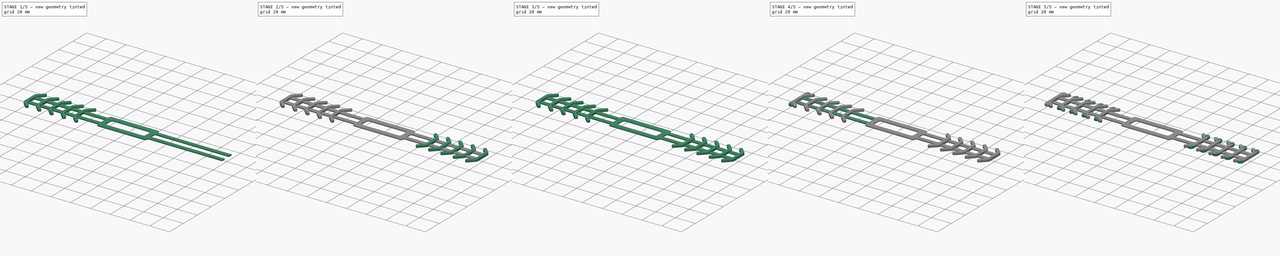
[diagram: build sequence overview — one tinted view per stage of 5, left to right]
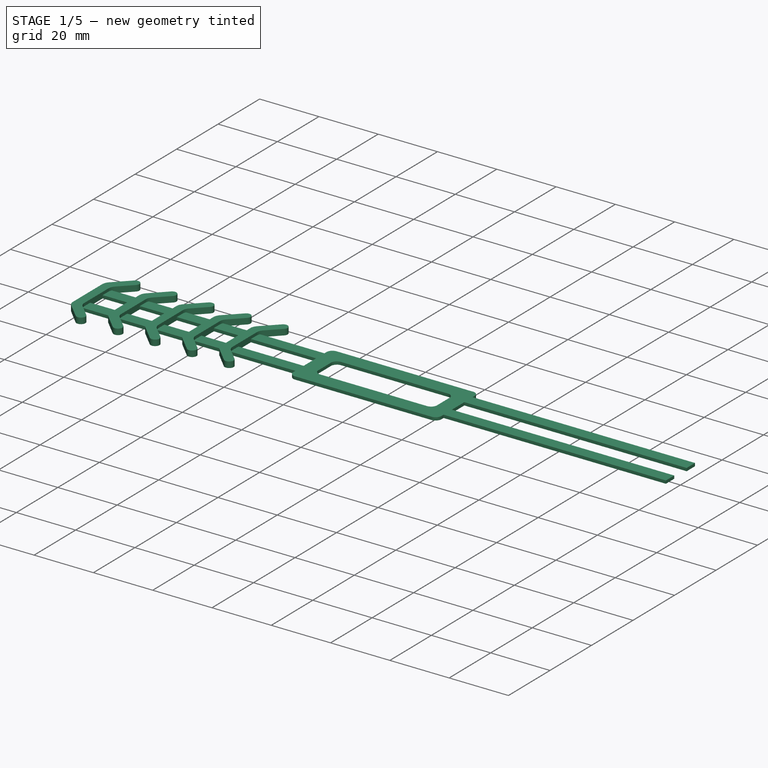
[diagram: stage 1 of 5 — iso view after this stage's code; geometry added in this stage tinted green]
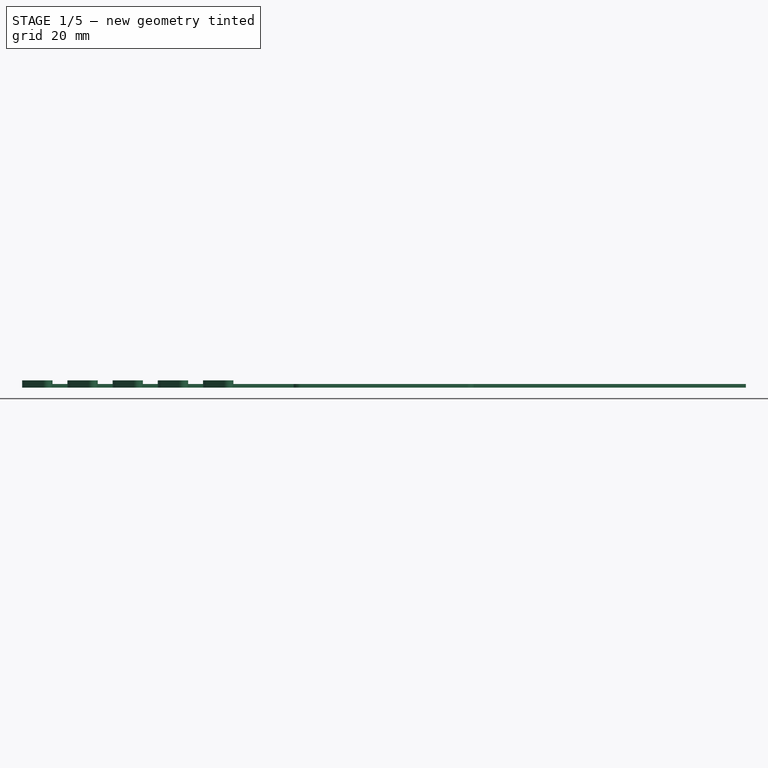
[diagram: stage 1 of 5 — front view after this stage's code; geometry added in this stage tinted green]
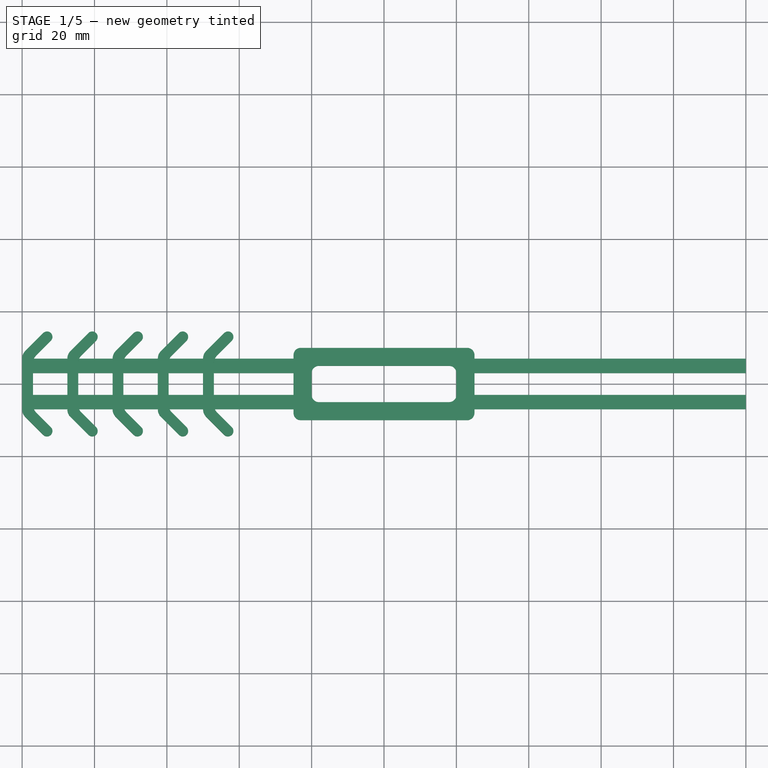
[diagram: stage 1 of 5 — top view after this stage's code; geometry added in this stage tinted green]
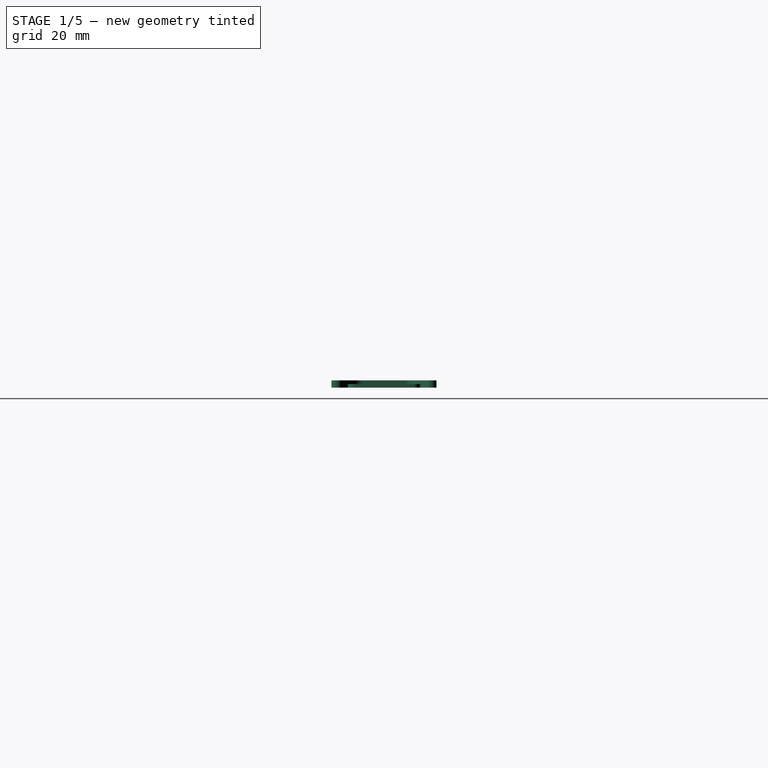
[diagram: stage 1 of 5 — right view after this stage's code; geometry added in this stage tinted green]
FCSTD DOCUMENT  (FreeCAD 0.19R24267 (Git))
Label: EarSaver
License: All rights reserved
LicenseURL: http://en.wikipedia.org/wiki/All_rights_reserved
objects: Sketcher::SketchObject×9, PartDesign::Pad×9, PartDesign::LinearPattern×6, PartDesign::Body×3
note: 36 computed .brp shape members not serialized (recipe doc carries the construction recipe); baked Part::Feature solids carry a one-line shape summary decoded from their .brp

FEATURE [PartDesign::Body] Body001
  Group = -> [Sketch003,Pad003,Sketch004,Pad004,LinearPattern002,Sketch005,Pad005,LinearPattern003]
  Origin = -> Origin002
  Tip = -> LinearPattern003
FEATURE [Sketcher::SketchObject] Sketch006
  FullyConstrained = true
  MapMode = 5
  Support = -> [XY_Plane003]
  sketch-geometry (36):
    g0: LineSegment StartX=-18 StartY=5 StartZ=0 EndX=18 EndY=5 EndZ=0
    g1: LineSegment StartX=20 StartY=3 StartZ=0 EndX=20 EndY=-3 EndZ=0
    g2: LineSegment StartX=18 StartY=-5 StartZ=0 EndX=-18 EndY=-5 EndZ=0
    g3: LineSegment StartX=-20 StartY=-3 StartZ=0 EndX=-20 EndY=3 EndZ=0
    g4: LineSegment StartX=-23 StartY=10 StartZ=0 EndX=23 EndY=10 EndZ=0
    g5: LineSegment StartX=25 StartY=8 StartZ=0 EndX=25 EndY=7 EndZ=0
    g6: LineSegment StartX=23 StartY=-10 StartZ=0 EndX=-23 EndY=-10 EndZ=0
    g7: LineSegment StartX=-25 StartY=-8 StartZ=0 EndX=-25 EndY=-7 EndZ=0
    g8: ArcOfCircle CenterX=-23 CenterY=8 CenterZ=0 NormalX=0 NormalY=0 NormalZ=1 AngleXU=0 Radius=2 StartAngle=1.5708 EndAngle=3.14159
    g9: ArcOfCircle CenterX=-18 CenterY=3 CenterZ=0 NormalX=0 NormalY=0 NormalZ=1 AngleXU=0 Radius=2 StartAngle=1.5708 EndAngle=3.14159
    g10: ArcOfCircle CenterX=18 CenterY=3 CenterZ=0 NormalX=0 NormalY=0 NormalZ=1 AngleXU=0 Radius=2 StartAngle=0 EndAngle=1.5708
    g11: ArcOfCircle CenterX=23 CenterY=8 CenterZ=0 NormalX=0 NormalY=0 NormalZ=1 AngleXU=0 Radius=2 StartAngle=1e-16 EndAngle=1.5708
    g12: ArcOfCircle CenterX=23 CenterY=-8 CenterZ=0 NormalX=0 NormalY=0 NormalZ=1 AngleXU=0 Radius=2 StartAngle=4.71239 EndAngle=6.28319
    g13: ArcOfCircle CenterX=18 CenterY=-3 CenterZ=0 NormalX=0 NormalY=0 NormalZ=1 AngleXU=0 Radius=2 StartAngle=4.71239 EndAngle=6.28319
    g14: ArcOfCircle CenterX=-18 CenterY=-3 CenterZ=0 NormalX=0 NormalY=0 NormalZ=1 AngleXU=0 Radius=2 StartAngle=3.14159 EndAngle=4.71239
    g15: ArcOfCircle CenterX=-23 CenterY=-8 CenterZ=0 NormalX=0 NormalY=0 NormalZ=1 AngleXU=0 Radius=2 StartAngle=3.14159 EndAngle=4.71239
    g16: LineSegment StartX=-20 StartY=3 StartZ=0 EndX=-25 EndY=3 EndZ=0
    g17: LineSegment StartX=18 StartY=5 StartZ=0 EndX=18 EndY=10 EndZ=0
    g18: LineSegment StartX=20 StartY=-3 StartZ=0 EndX=25 EndY=-3 EndZ=0
    g19: LineSegment StartX=-18 StartY=-5 StartZ=0 EndX=-18 EndY=-10 EndZ=0
    g20: LineSegment StartX=-25 StartY=7 StartZ=0 EndX=-100 EndY=7 EndZ=0
    g21: LineSegment StartX=-100 StartY=7 StartZ=0 EndX=-100 EndY=3 EndZ=0
    g22: LineSegment StartX=-100 StartY=3 StartZ=0 EndX=-25 EndY=3 EndZ=0
    g23: LineSegment StartX=-25 StartY=-3 StartZ=0 EndX=-100 EndY=-3 EndZ=0
    g24: LineSegment StartX=-100 StartY=-3 StartZ=0 EndX=-100 EndY=-7 EndZ=0
    g25: LineSegment StartX=-100 StartY=-7 StartZ=0 EndX=-25 EndY=-7 EndZ=0
    g26: LineSegment StartX=25 StartY=7 StartZ=0 EndX=100 EndY=7 EndZ=0
    g27: LineSegment StartX=100 StartY=7 StartZ=0 EndX=100 EndY=3 EndZ=0
    g28: LineSegment StartX=100 StartY=3 StartZ=0 EndX=25 EndY=3 EndZ=0
    g29: LineSegment StartX=25 StartY=-3 StartZ=0 EndX=100 EndY=-3 EndZ=0
    g30: LineSegment StartX=100 StartY=-3 StartZ=0 EndX=100 EndY=-7 EndZ=0
    g31: LineSegment StartX=100 StartY=-7 StartZ=0 EndX=25 EndY=-7 EndZ=0
    g32: LineSegment StartX=-25 StartY=7 StartZ=0 EndX=-25 EndY=8 EndZ=0
    g33: LineSegment StartX=-25 StartY=-3 StartZ=0 EndX=-25 EndY=3 EndZ=0
    g34: LineSegment StartX=25 StartY=3 StartZ=0 EndX=25 EndY=-3 EndZ=0
    g35: LineSegment StartX=25 StartY=-7 StartZ=0 EndX=25 EndY=-8 EndZ=0
  constraints (93):
    c: Horizontal(g0)
    c: Horizontal(g2)
    c: Vertical(g1)
    c: Vertical(g3)
    c: Horizontal(g4)
    c: Horizontal(g6)
    c: Vertical(g5)
    c: Vertical(g7)
    c: Tangent(g4,g8) = 1.5708
    c: Tangent(g0,g9) = 1.5708
    c: Tangent(g3,g9) = 1.5708
    c: Tangent(g0,g10) = 1.5708
    c: Tangent(g1,g10) = 1.5708
    c: Tangent(g4,g11) = 1.5708
    c: Tangent(g5,g11) = 1.5708
    c: Tangent(g6,g12) = 1.5708
    c: Tangent(g1,g13) = 1.5708
    c: Tangent(g2,g13) = 1.5708
    c: Tangent(g2,g14) = 1.5708
    c: Tangent(g3,g14) = 1.5708
    c: Tangent(g6,g15) = 1.5708
    c: Tangent(g7,g15) = 1.5708
    c: Equal(g8,g9)
    c: Equal(g9,g10)
    c: Equal(g10,g11)
    c: Equal(g11,g12)
    c: Equal(g12,g13)
    c: Equal(g13,g14)
    c: Equal(g14,g15)
    c: Radius(g8) = 2
    c: Coincident(g16,g3)
    c: Horizontal(g16)
    c: Coincident(g17,g0)
    c: PointOnObject(g17,g4)
    c: Vertical(g17)
    c: Coincident(g18,g1)
    c: PointOnObject(g18,g5)
    c: Horizontal(g18)
    c: Coincident(g19,g2)
    c: PointOnObject(g19,g6)
    c: Vertical(g19)
    c: Equal(g16,g17)
    c: Equal(g17,g18)
    c: Equal(g18,g19)
    c: DistanceY(g19,g19) = 5
    c: DistanceX(g32,g5) = 50
    c: DistanceY(g6,g4) = 20
    c: Horizontal(g20)
    c: Coincident(g20,g21)
    c: Coincident(g21,g22)
    c: PointOnObject(g22,g7)
    c: Horizontal(g22)
    c: DistanceY(g21,g21) = 4
    c: Symmetric(g20,g21,g0)
    c: Horizontal(g23)
    c: Coincident(g23,g24)
    c: Coincident(g24,g25)
    c: Horizontal(g25)
    c: Equal(g21,g24)
    c: Symmetric(g23,g24,g2)
    c: Equal(g23,g22)
    c: Horizontal(g26)
    c: Coincident(g26,g27)
    c: Coincident(g27,g28)
    c: Horizontal(g28)
    c: PointOnObject(g29,g5)
    c: Horizontal(g29)
    c: Coincident(g29,g30)
    c: Coincident(g30,g31)
    c: PointOnObject(g31,g5)
    c: Horizontal(g31)
    c: Equal(g25,g31)
    c: Equal(g29,g28)
    c: Equal(g24,g30)
    c: Equal(g30,g27)
    c: Symmetric(g26,g27,g0)
    c: Symmetric(g30,g29,g2)
    c: Symmetric(g14,g10,g-1)
    c: Coincident(g33,g16)
    c: Coincident(g32,g20)
    c: Tangent(g7,g32)
    c: Coincident(g7,g25)
    c: Coincident(g33,g23)
    c: Tangent(g7,g33)
    c: Coincident(g5,g26)
    c: Coincident(g34,g28)
    c: Tangent(g5,g34)
    c: PointOnObject(g34,g18)
    c: PointOnObject(g35,g31)
    c: Tangent(g34,g35)
    c: Tangent(g8,g32) = 1.5708
    c: Tangent(g12,g35) = 1.5708
    c: DistanceX(g20,g20) = 75
FEATURE [PartDesign::Pad] Pad006
  AllowMultiFace = false
  Direction = (1,1,1)
  Length = 1
  Length2 = 100
  Profile = -> Sketch006
  Type = 0
FEATURE [Sketcher::SketchObject] Sketch007
  ExternalGeometry = -> [Sketch006]
  FullyConstrained = true
  MapMode = 5
  Support = -> [XY_Plane003]
  expr: Constraints[32] = .Constraints.Width
  sketch-geometry (15):
    g0: LineSegment StartX=-100 StartY=7 StartZ=0 EndX=-100 EndY=-7 EndZ=0
    g1: LineSegment StartX=-94.1716 StartY=-14.0711 StartZ=0 EndX=-92.0502 EndY=-11.9498 EndZ=0
    g2: LineSegment StartX=-92.0502 StartY=-11.9498 StartZ=0 EndX=-96.1213 EndY=-7.87862 EndZ=0
    g3: LineSegment StartX=-97 StartY=-5.75731 StartZ=0 EndX=-97 EndY=5.75736 EndZ=0
    g4: LineSegment StartX=-96.1213 StartY=7.87868 StartZ=0 EndX=-92.0502 EndY=11.9498 EndZ=0
    g5: LineSegment StartX=-92.0502 StartY=11.9498 StartZ=0 EndX=-94.1716 EndY=14.0711 EndZ=0
    g6: LineSegment StartX=-99.1213 StartY=9.12132 StartZ=0 EndX=-94.1716 EndY=14.0711 EndZ=0
    g7: ArcOfCircle CenterX=-97 CenterY=7 CenterZ=0 NormalX=0 NormalY=0 NormalZ=1 AngleXU=0 Radius=3 StartAngle=2.35619 EndAngle=3.14159
    g8: LineSegment StartX=-100 StartY=3 StartZ=0 EndX=-97 EndY=3 EndZ=0
    g9: ArcOfCircle CenterX=-94 CenterY=5.75736 CenterZ=0 NormalX=0 NormalY=0 NormalZ=1 AngleXU=0 Radius=3 StartAngle=2.35619 EndAngle=3.14159
    g10: ArcOfCircle CenterX=-93.1109 CenterY=13.0104 CenterZ=0 NormalX=0 NormalY=0 NormalZ=1 AngleXU=0 Radius=1.5 StartAngle=5.49779 EndAngle=8.63938
    g11: LineSegment StartX=-99.1213 StartY=-9.12132 StartZ=0 EndX=-94.1716 EndY=-14.0711 EndZ=0
    g12: ArcOfCircle CenterX=-97 CenterY=-7 CenterZ=0 NormalX=0 NormalY=0 NormalZ=1 AngleXU=0 Radius=3 StartAngle=3.14159 EndAngle=3.92699
    g13: ArcOfCircle CenterX=-94 CenterY=-5.75731 CenterZ=0 NormalX=0 NormalY=0 NormalZ=1 AngleXU=0 Radius=3 StartAngle=3.14159 EndAngle=3.92698
    g14: ArcOfCircle CenterX=-93.1109 CenterY=-13.0104 CenterZ=0 NormalX=0 NormalY=0 NormalZ=1 AngleXU=0 Radius=1.5 StartAngle=3.92698 EndAngle=7.06858
  constraints (37):
    c: Coincident(g1,g2)
    c: Vertical(g3)
    c: Coincident(g4,g5)
    c: Tangent(g0,g7) = -1.5708
    c: Tangent(g6,g7) = 1.5708
    c: Coincident(g0,g-3)
    c: Angle(g0,g6) = 2.35619
    c: Coincident(g5,g6)
    c: Perpendicular(g5,g6)
    c: Parallel(g4,g6)
    c: Coincident(g8,g-3)
    c: PointOnObject(g8,g3)
    c: Horizontal(g8)
    c: Equal(g8,g5)
    c: Tangent(g3,g9) = 1.5708
    c: Tangent(g4,g9) = 1.5708
    c: Equal(g7,g9)
    c: PointOnObject(g10,g5)
    c: Coincident(g10,g5)
    c: Coincident(g10,g4)
    c: DistanceX(g8,g8) = 3  'Width'
    c: Coincident(g11,g1)
    c: Tangent(g0,g12) = -1.5708
    c: Tangent(g11,g12) = -1.5708
    c: Tangent(g2,g13) = 1.5708
    c: Tangent(g3,g13) = 1.5708
    c: Equal(g13,g12)
    c: Equal(g12,g9)
    c: Coincident(g0,g-4)
    c: PointOnObject(g14,g1)
    c: Equal(g14,g10)
    c: Symmetric(g14,g10,g-1)
    c: Radius(g7) = 3
    c: Tangent(g14,g2) = -1.5708
    c: Coincident(g1,g14)
    c: Tangent(g11,g14)
    c: Distance(g11) = 7  'Length'
FEATURE [PartDesign::Pad] Pad007
  AllowMultiFace = false
  BaseFeature = -> Pad006
  Direction = (1,1,1)
  Length = 2
  Length2 = 100
  Profile = -> Sketch007
  Type = 0
FEATURE [PartDesign::LinearPattern] LinearPattern004
  BaseFeature = -> Pad007
  Direction = -> Sketch007 [H_Axis]
  Length = 50
  Occurrences = 5
  Originals = -> [Pad007]
  Refine = true
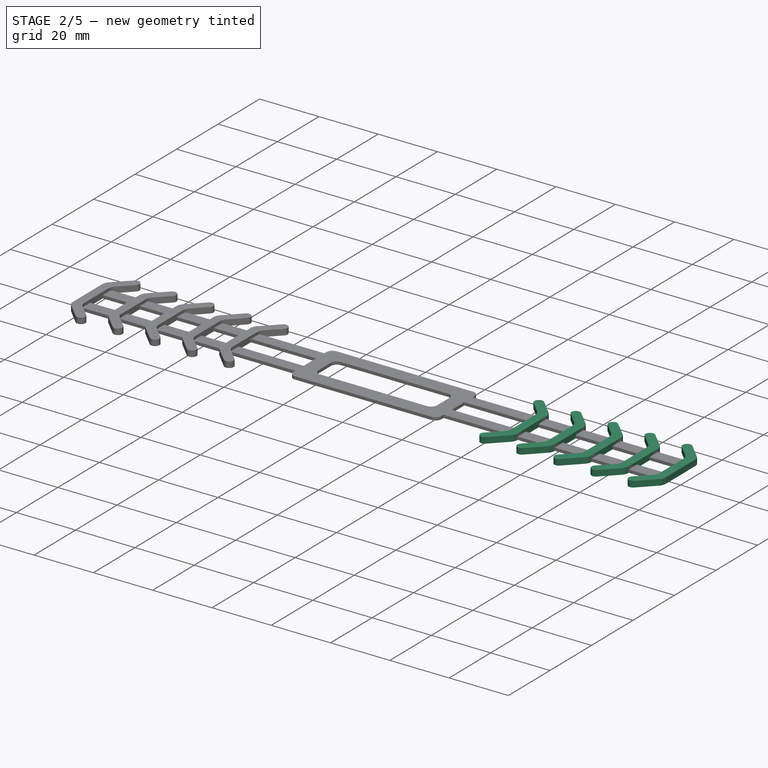
[diagram: stage 2 of 5 — iso view after this stage's code; geometry added in this stage tinted green]
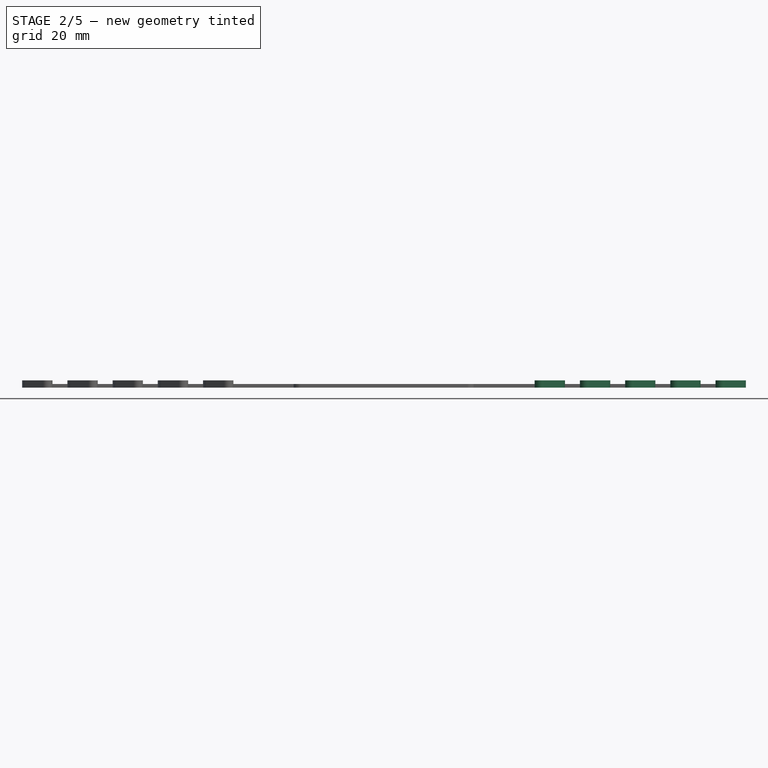
[diagram: stage 2 of 5 — front view after this stage's code; geometry added in this stage tinted green]
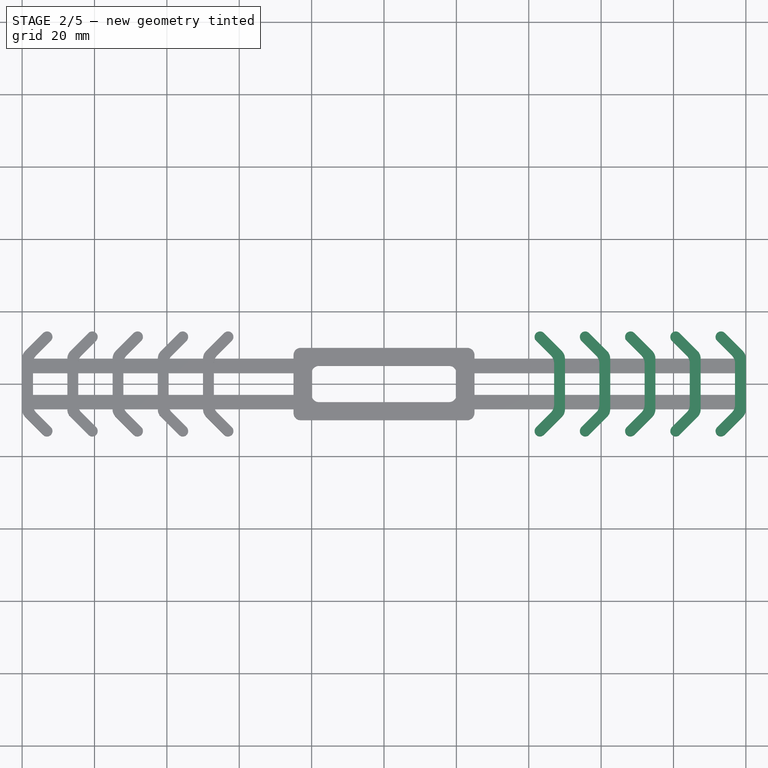
[diagram: stage 2 of 5 — top view after this stage's code; geometry added in this stage tinted green]
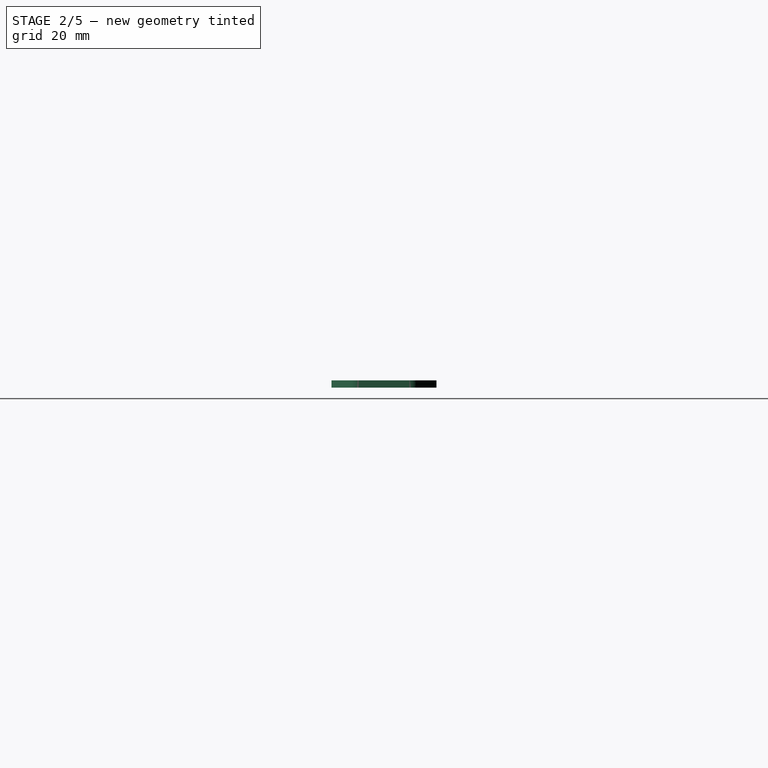
[diagram: stage 2 of 5 — right view after this stage's code; geometry added in this stage tinted green]
FEATURE [PartDesign::Body] Body
  Group = -> [Sketch,Pad,Sketch001,Pad001,LinearPattern,Sketch002,Pad002,LinearPattern001]
  Origin = -> Origin001
  Tip = -> LinearPattern001
FEATURE [Sketcher::SketchObject] Sketch003
  FullyConstrained = true
  MapMode = 5
  Support = -> [XY_Plane002]
  sketch-geometry (36):
    g0: LineSegment StartX=-18 StartY=5 StartZ=0 EndX=18 EndY=5 EndZ=0
    g1: LineSegment StartX=20 StartY=3 StartZ=0 EndX=20 EndY=-3 EndZ=0
    g2: LineSegment StartX=18 StartY=-5 StartZ=0 EndX=-18 EndY=-5 EndZ=0
    g3: LineSegment StartX=-20 StartY=-3 StartZ=0 EndX=-20 EndY=3 EndZ=0
    g4: LineSegment StartX=-23 StartY=10 StartZ=0 EndX=23 EndY=10 EndZ=0
    g5: LineSegment StartX=25 StartY=8 StartZ=0 EndX=25 EndY=7 EndZ=0
    g6: LineSegment StartX=23 StartY=-10 StartZ=0 EndX=-23 EndY=-10 EndZ=0
    g7: LineSegment StartX=-25 StartY=-8 StartZ=0 EndX=-25 EndY=-7 EndZ=0
    g8: ArcOfCircle CenterX=-23 CenterY=8 CenterZ=0 NormalX=0 NormalY=0 NormalZ=1 AngleXU=0 Radius=2 StartAngle=1.5708 EndAngle=3.14159
    g9: ArcOfCircle CenterX=-18 CenterY=3 CenterZ=0 NormalX=0 NormalY=0 NormalZ=1 AngleXU=0 Radius=2 StartAngle=1.5708 EndAngle=3.14159
    g10: ArcOfCircle CenterX=18 CenterY=3 CenterZ=0 NormalX=0 NormalY=0 NormalZ=1 AngleXU=0 Radius=2 StartAngle=0 EndAngle=1.5708
    g11: ArcOfCircle CenterX=23 CenterY=8 CenterZ=0 NormalX=0 NormalY=0 NormalZ=1 AngleXU=0 Radius=2 StartAngle=1e-16 EndAngle=1.5708
    g12: ArcOfCircle CenterX=23 CenterY=-8 CenterZ=0 NormalX=0 NormalY=0 NormalZ=1 AngleXU=0 Radius=2 StartAngle=4.71239 EndAngle=6.28319
    g13: ArcOfCircle CenterX=18 CenterY=-3 CenterZ=0 NormalX=0 NormalY=0 NormalZ=1 AngleXU=0 Radius=2 StartAngle=4.71239 EndAngle=6.28319
    g14: ArcOfCircle CenterX=-18 CenterY=-3 CenterZ=0 NormalX=0 NormalY=0 NormalZ=1 AngleXU=0 Radius=2 StartAngle=3.14159 EndAngle=4.71239
    g15: ArcOfCircle CenterX=-23 CenterY=-8 CenterZ=0 NormalX=0 NormalY=0 NormalZ=1 AngleXU=0 Radius=2 StartAngle=3.14159 EndAngle=4.71239
    g16: LineSegment StartX=-20 StartY=3 StartZ=0 EndX=-25 EndY=3 EndZ=0
    g17: LineSegment StartX=18 StartY=5 StartZ=0 EndX=18 EndY=10 EndZ=0
    g18: LineSegment StartX=20 StartY=-3 StartZ=0 EndX=25 EndY=-3 EndZ=0
    g19: LineSegment StartX=-18 StartY=-5 StartZ=0 EndX=-18 EndY=-10 EndZ=0
    g20: LineSegment StartX=-25 StartY=7 StartZ=0 EndX=-100 EndY=7 EndZ=0
    g21: LineSegment StartX=-100 StartY=7 StartZ=0 EndX=-100 EndY=3 EndZ=0
    g22: LineSegment StartX=-100 StartY=3 StartZ=0 EndX=-25 EndY=3 EndZ=0
    g23: LineSegment StartX=-25 StartY=-3 StartZ=0 EndX=-100 EndY=-3 EndZ=0
    g24: LineSegment StartX=-100 StartY=-3 StartZ=0 EndX=-100 EndY=-7 EndZ=0
    g25: LineSegment StartX=-100 StartY=-7 StartZ=0 EndX=-25 EndY=-7 EndZ=0
    g26: LineSegment StartX=25 StartY=7 StartZ=0 EndX=100 EndY=7 EndZ=0
    g27: LineSegment StartX=100 StartY=7 StartZ=0 EndX=100 EndY=3 EndZ=0
    g28: LineSegment StartX=100 StartY=3 StartZ=0 EndX=25 EndY=3 EndZ=0
    g29: LineSegment StartX=25 StartY=-3 StartZ=0 EndX=100 EndY=-3 EndZ=0
    g30: LineSegment StartX=100 StartY=-3 StartZ=0 EndX=100 EndY=-7 EndZ=0
    g31: LineSegment StartX=100 StartY=-7 StartZ=0 EndX=25 EndY=-7 EndZ=0
    g32: LineSegment StartX=-25 StartY=7 StartZ=0 EndX=-25 EndY=8 EndZ=0
    g33: LineSegment StartX=-25 StartY=-3 StartZ=0 EndX=-25 EndY=3 EndZ=0
    g34: LineSegment StartX=25 StartY=3 StartZ=0 EndX=25 EndY=-3 EndZ=0
    g35: LineSegment StartX=25 StartY=-7 StartZ=0 EndX=25 EndY=-8 EndZ=0
  constraints (93):
    c: Horizontal(g0)
    c: Horizontal(g2)
    c: Vertical(g1)
    c: Vertical(g3)
    c: Horizontal(g4)
    c: Horizontal(g6)
    c: Vertical(g5)
    c: Vertical(g7)
    c: Tangent(g4,g8) = 1.5708
    c: Tangent(g0,g9) = 1.5708
    c: Tangent(g3,g9) = 1.5708
    c: Tangent(g0,g10) = 1.5708
    c: Tangent(g1,g10) = 1.5708
    c: Tangent(g4,g11) = 1.5708
    c: Tangent(g5,g11) = 1.5708
    c: Tangent(g6,g12) = 1.5708
    c: Tangent(g1,g13) = 1.5708
    c: Tangent(g2,g13) = 1.5708
    c: Tangent(g2,g14) = 1.5708
    c: Tangent(g3,g14) = 1.5708
    c: Tangent(g6,g15) = 1.5708
    c: Tangent(g7,g15) = 1.5708
    c: Equal(g8,g9)
    c: Equal(g9,g10)
    c: Equal(g10,g11)
    c: Equal(g11,g12)
    c: Equal(g12,g13)
    c: Equal(g13,g14)
    c: Equal(g14,g15)
    c: Radius(g8) = 2
    c: Coincident(g16,g3)
    c: Horizontal(g16)
    c: Coincident(g17,g0)
    c: PointOnObject(g17,g4)
    c: Vertical(g17)
    c: Coincident(g18,g1)
    c: PointOnObject(g18,g5)
    c: Horizontal(g18)
    c: Coincident(g19,g2)
    c: PointOnObject(g19,g6)
    c: Vertical(g19)
    c: Equal(g16,g17)
    c: Equal(g17,g18)
    c: Equal(g18,g19)
    c: DistanceY(g19,g19) = 5
    c: DistanceX(g32,g5) = 50
    c: DistanceY(g6,g4) = 20
    c: Horizontal(g20)
    c: Coincident(g20,g21)
    c: Coincident(g21,g22)
    c: PointOnObject(g22,g7)
    c: Horizontal(g22)
    c: DistanceY(g21,g21) = 4
    c: Symmetric(g20,g21,g0)
    c: Horizontal(g23)
    c: Coincident(g23,g24)
    c: Coincident(g24,g25)
    c: Horizontal(g25)
    c: Equal(g21,g24)
    c: Symmetric(g23,g24,g2)
    c: Equal(g23,g22)
    c: Horizontal(g26)
    c: Coincident(g26,g27)
    c: Coincident(g27,g28)
    c: Horizontal(g28)
    c: PointOnObject(g29,g5)
    c: Horizontal(g29)
    c: Coincident(g29,g30)
    c: Coincident(g30,g31)
    c: PointOnObject(g31,g5)
    c: Horizontal(g31)
    c: Equal(g25,g31)
    c: Equal(g29,g28)
    c: Equal(g24,g30)
    c: Equal(g30,g27)
    c: Symmetric(g26,g27,g0)
    c: Symmetric(g30,g29,g2)
    c: Symmetric(g14,g10,g-1)
    c: Coincident(g33,g16)
    c: Coincident(g32,g20)
    c: Tangent(g7,g32)
    c: Coincident(g7,g25)
    c: Coincident(g33,g23)
    c: Tangent(g7,g33)
    c: Coincident(g5,g26)
    c: Coincident(g34,g28)
    c: Tangent(g5,g34)
    c: PointOnObject(g34,g18)
    c: PointOnObject(g35,g31)
    c: Tangent(g34,g35)
    c: Tangent(g8,g32) = 1.5708
    c: Tangent(g12,g35) = 1.5708
    c: DistanceX(g20,g20) = 75
FEATURE [PartDesign::Pad] Pad003
  AllowMultiFace = false
  Direction = (1,1,1)
  Length = 1
  Length2 = 100
  Profile = -> Sketch003
  Type = 0
FEATURE [Sketcher::SketchObject] Sketch008
  ExternalGeometry = -> [Sketch006]
  FullyConstrained = true
  MapMode = 5
  Support = -> [XY_Plane003]
  expr: Constraints[12] = Sketch007.Constraints.Length
  expr: Constraints[7] = Sketch007.Constraints.Width
  expr: Constraints[6] = Sketch007.Constraints.Width
  sketch-geometry (15):
    g0: LineSegment StartX=97 StartY=-2e-16 StartZ=0 EndX=100 EndY=-2e-16 EndZ=0
    g1: LineSegment StartX=100 StartY=7 StartZ=0 EndX=100 EndY=-7 EndZ=0
    g2: LineSegment StartX=99.1213 StartY=9.12132 StartZ=0 EndX=94.1716 EndY=14.0711 EndZ=0
    g3: LineSegment StartX=99.1213 StartY=-9.12132 StartZ=0 EndX=94.1716 EndY=-14.0711 EndZ=0
    g4: ArcOfCircle CenterX=97 CenterY=7 CenterZ=0 NormalX=0 NormalY=0 NormalZ=1 AngleXU=0 Radius=3 StartAngle=0 EndAngle=0.785398
    g5: ArcOfCircle CenterX=97 CenterY=-7 CenterZ=0 NormalX=0 NormalY=0 NormalZ=1 AngleXU=0 Radius=3 StartAngle=5.49779 EndAngle=6.28319
    g6: LineSegment StartX=97 StartY=5.75736 StartZ=0 EndX=97 EndY=-5.75736 EndZ=0
    g7: LineSegment StartX=96.1213 StartY=7.87868 StartZ=0 EndX=92.0503 EndY=11.9497 EndZ=0
    g8: LineSegment StartX=96.1213 StartY=-7.87868 StartZ=0 EndX=92.0503 EndY=-11.9497 EndZ=0
    g9: ArcOfCircle CenterX=94 CenterY=5.75736 CenterZ=0 NormalX=0 NormalY=0 NormalZ=1 AngleXU=0 Radius=3 StartAngle=0 EndAngle=0.785398
    g10: ArcOfCircle CenterX=94 CenterY=-5.75736 CenterZ=0 NormalX=0 NormalY=0 NormalZ=1 AngleXU=0 Radius=3 StartAngle=5.49779 EndAngle=6.28319
    g11: LineSegment StartX=92.0503 StartY=-11.9497 StartZ=0 EndX=94.1716 EndY=-14.0711 EndZ=0
    g12: ArcOfCircle CenterX=93.1109 CenterY=-13.0104 CenterZ=0 NormalX=0 NormalY=0 NormalZ=1 AngleXU=0 Radius=1.5 StartAngle=2.35619 EndAngle=5.49779
    g13: ArcOfCircle CenterX=93.1109 CenterY=13.0104 CenterZ=0 NormalX=0 NormalY=0 NormalZ=1 AngleXU=0 Radius=1.5 StartAngle=0.785398 EndAngle=3.92699
    g14: LineSegment StartX=92.0503 StartY=11.9497 StartZ=0 EndX=94.1716 EndY=14.0711 EndZ=0
  constraints (34):
    c: Symmetric(g-3,g-4,g0)
    c: Tangent(g1,g4) = 1.5708
    c: Tangent(g2,g4) = -1.5708
    c: Tangent(g1,g5) = 1.5708
    c: Tangent(g3,g5) = 1.5708
    c: PointOnObject(g0,g-3)
    c: DistanceX(g0,g0) = 3
    c: Radius(g4) = 3
    c: Coincident(g1,g-3)
    c: Coincident(g1,g-4)
    c: Equal(g5,g4)
    c: Angle(g1,g3) = 2.35619
    c: Distance(g3) = 7
    c: Vertical(g6)
    c: PointOnObject(g0,g6)
    c: Tangent(g6,g9) = 1.5708
    c: Tangent(g7,g9) = -1.5708
    c: Tangent(g6,g10) = 1.5708
    c: Tangent(g8,g10) = 1.5708
    c: Equal(g10,g9)
    c: Equal(g9,g5)
    c: PointOnObject(g12,g11)
    c: Tangent(g13,g7) = 1.5708
    c: Tangent(g13,g2) = -1.5708
    c: Coincident(g14,g7)
    c: Coincident(g14,g2)
    c: PointOnObject(g13,g14)
    c: Equal(g14,g0)
    c: Equal(g0,g11)
    c: Tangent(g8,g12) = -1.5708
    c: Tangent(g3,g12) = 1.5708
    c: Coincident(g11,g3)
    c: Coincident(g11,g8)
    c: Symmetric(g12,g13,g0)
FEATURE [PartDesign::Pad] Pad008
  AllowMultiFace = false
  BaseFeature = -> LinearPattern004
  Direction = (1,1,1)
  Length = 2
  Length2 = 100
  Profile = -> Sketch008
  Type = 0
  expr: Length = Pad007.Length
FEATURE [PartDesign::LinearPattern] LinearPattern005
  BaseFeature = -> Pad008
  Direction = -> Sketch008 [H_Axis]
  Length = 50
  Occurrences = 5
  Originals = -> [Pad008]
  Refine = true
  Reversed = true
FEATURE [PartDesign::Body] Body002
  Group = -> [Sketch006,Pad006,Sketch007,Pad007,LinearPattern004,Sketch008,Pad008,LinearPattern005]
  Origin = -> Origin003
  Tip = -> LinearPattern005
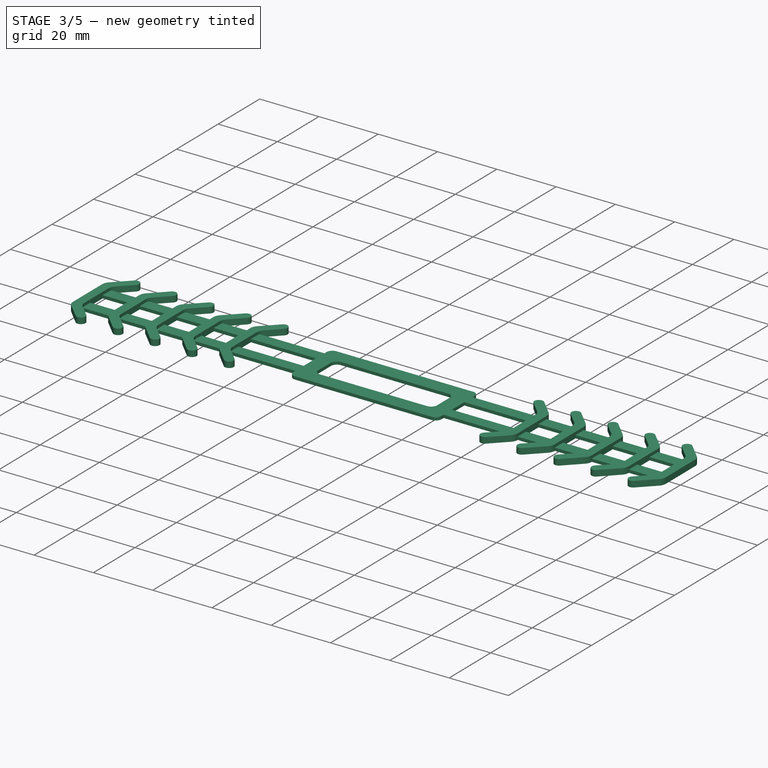
[diagram: stage 3 of 5 — iso view after this stage's code; geometry added in this stage tinted green]
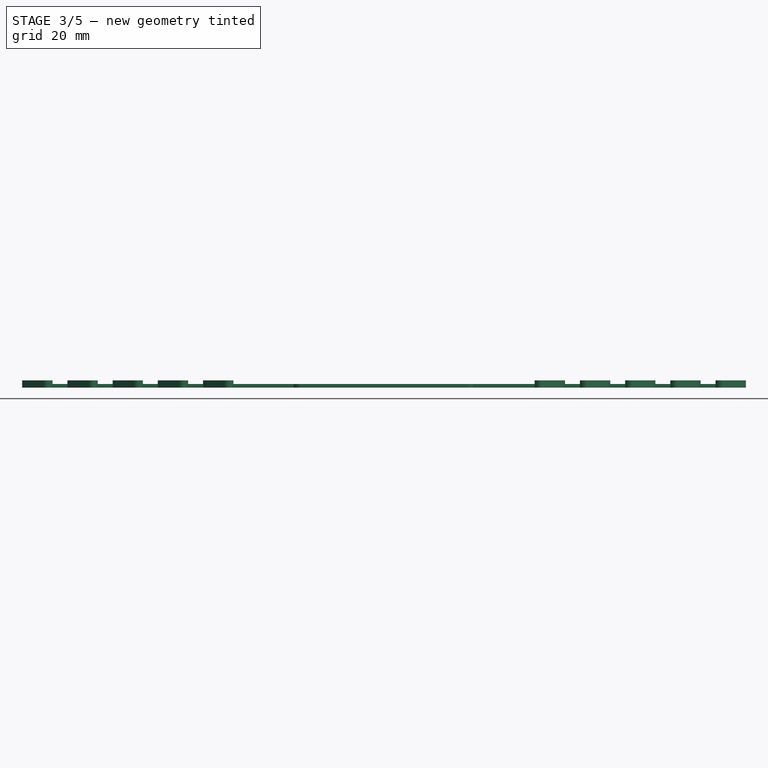
[diagram: stage 3 of 5 — front view after this stage's code; geometry added in this stage tinted green]
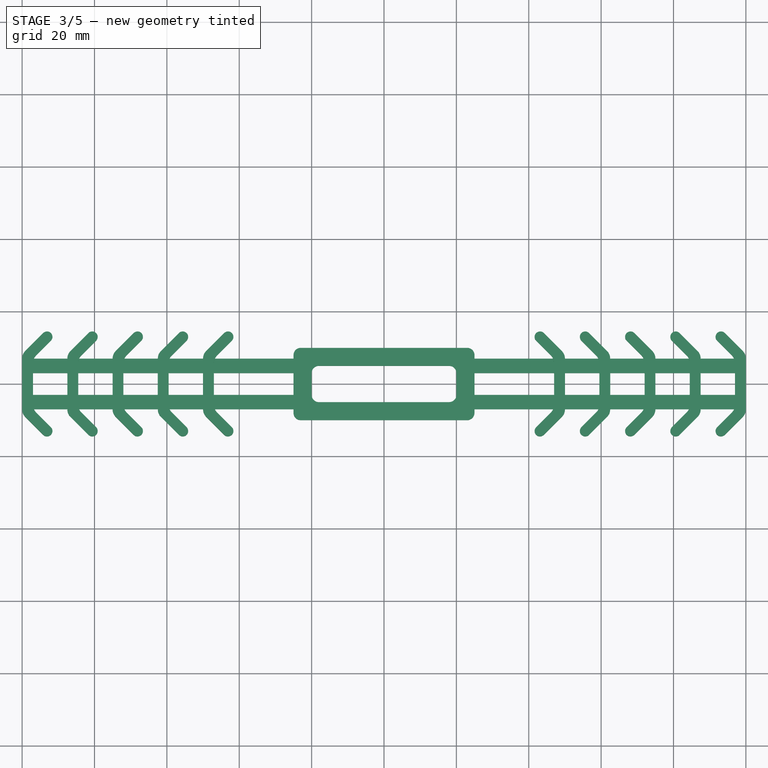
[diagram: stage 3 of 5 — top view after this stage's code; geometry added in this stage tinted green]
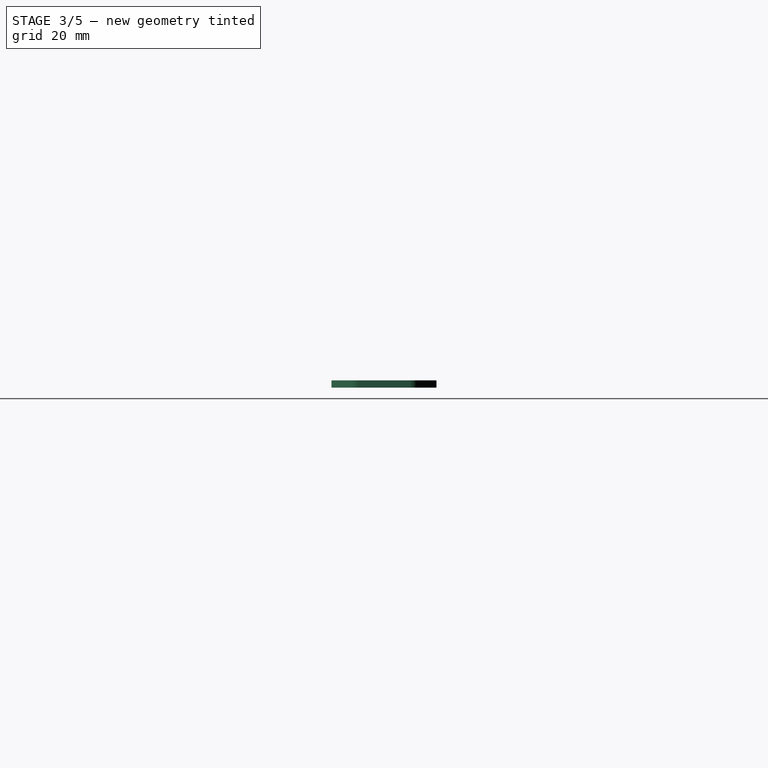
[diagram: stage 3 of 5 — right view after this stage's code; geometry added in this stage tinted green]
FEATURE [Sketcher::SketchObject] Sketch004
  ExternalGeometry = -> [Sketch003]
  FullyConstrained = true
  MapMode = 5
  Support = -> [XY_Plane002]
  expr: Constraints[32] = .Constraints.Width
  sketch-geometry (15):
    g0: LineSegment StartX=-100 StartY=7 StartZ=0 EndX=-100 EndY=-7 EndZ=0
    g1: LineSegment StartX=-94.1716 StartY=-14.0711 StartZ=0 EndX=-92.0502 EndY=-11.9498 EndZ=0
    g2: LineSegment StartX=-92.0502 StartY=-11.9498 StartZ=0 EndX=-96.1213 EndY=-7.87862 EndZ=0
    g3: LineSegment StartX=-97 StartY=-5.75731 StartZ=0 EndX=-97 EndY=5.75736 EndZ=0
    g4: LineSegment StartX=-96.1213 StartY=7.87868 StartZ=0 EndX=-92.0502 EndY=11.9498 EndZ=0
    g5: LineSegment StartX=-92.0502 StartY=11.9498 StartZ=0 EndX=-94.1716 EndY=14.0711 EndZ=0
    g6: LineSegment StartX=-99.1213 StartY=9.12132 StartZ=0 EndX=-94.1716 EndY=14.0711 EndZ=0
    g7: ArcOfCircle CenterX=-97 CenterY=7 CenterZ=0 NormalX=0 NormalY=0 NormalZ=1 AngleXU=0 Radius=3 StartAngle=2.35619 EndAngle=3.14159
    g8: LineSegment StartX=-100 StartY=3 StartZ=0 EndX=-97 EndY=3 EndZ=0
    g9: ArcOfCircle CenterX=-94 CenterY=5.75736 CenterZ=0 NormalX=0 NormalY=0 NormalZ=1 AngleXU=0 Radius=3 StartAngle=2.35619 EndAngle=3.14159
    g10: ArcOfCircle CenterX=-93.1109 CenterY=13.0104 CenterZ=0 NormalX=0 NormalY=0 NormalZ=1 AngleXU=0 Radius=1.5 StartAngle=5.49779 EndAngle=8.63938
    g11: LineSegment StartX=-99.1213 StartY=-9.12132 StartZ=0 EndX=-94.1716 EndY=-14.0711 EndZ=0
    g12: ArcOfCircle CenterX=-97 CenterY=-7 CenterZ=0 NormalX=0 NormalY=0 NormalZ=1 AngleXU=0 Radius=3 StartAngle=3.14159 EndAngle=3.92699
    g13: ArcOfCircle CenterX=-94 CenterY=-5.75731 CenterZ=0 NormalX=0 NormalY=0 NormalZ=1 AngleXU=0 Radius=3 StartAngle=3.14159 EndAngle=3.92698
    g14: ArcOfCircle CenterX=-93.1109 CenterY=-13.0104 CenterZ=0 NormalX=0 NormalY=0 NormalZ=1 AngleXU=0 Radius=1.5 StartAngle=3.92698 EndAngle=7.06858
  constraints (37):
    c: Coincident(g1,g2)
    c: Vertical(g3)
    c: Coincident(g4,g5)
    c: Tangent(g0,g7) = -1.5708
    c: Tangent(g6,g7) = 1.5708
    c: Coincident(g0,g-3)
    c: Angle(g0,g6) = 2.35619
    c: Coincident(g5,g6)
    c: Perpendicular(g5,g6)
    c: Parallel(g4,g6)
    c: Coincident(g8,g-3)
    c: PointOnObject(g8,g3)
    c: Horizontal(g8)
    c: Equal(g8,g5)
    c: Tangent(g3,g9) = 1.5708
    c: Tangent(g4,g9) = 1.5708
    c: Equal(g7,g9)
    c: PointOnObject(g10,g5)
    c: Coincident(g10,g5)
    c: Coincident(g10,g4)
    c: DistanceX(g8,g8) = 3  'Width'
    c: Coincident(g11,g1)
    c: Tangent(g0,g12) = -1.5708
    c: Tangent(g11,g12) = -1.5708
    c: Tangent(g2,g13) = 1.5708
    c: Tangent(g3,g13) = 1.5708
    c: Equal(g13,g12)
    c: Equal(g12,g9)
    c: Coincident(g0,g-4)
    c: PointOnObject(g14,g1)
    c: Equal(g14,g10)
    c: Symmetric(g14,g10,g-1)
    c: Radius(g7) = 3
    c: Tangent(g14,g2) = -1.5708
    c: Coincident(g1,g14)
    c: Tangent(g11,g14)
    c: Distance(g11) = 7  'Length'
FEATURE [PartDesign::Pad] Pad004
  AllowMultiFace = false
  BaseFeature = -> Pad003
  Direction = (1,1,1)
  Length = 2
  Length2 = 100
  Profile = -> Sketch004
  Type = 0
FEATURE [PartDesign::LinearPattern] LinearPattern002
  BaseFeature = -> Pad004
  Direction = -> Sketch004 [H_Axis]
  Length = 50
  Occurrences = 5
  Originals = -> [Pad004]
  Refine = true
FEATURE [Sketcher::SketchObject] Sketch005
  ExternalGeometry = -> [Sketch003]
  FullyConstrained = true
  MapMode = 5
  Support = -> [XY_Plane002]
  expr: Constraints[6] = Sketch004.Constraints.Width
  expr: Constraints[7] = Sketch004.Constraints.Width
  expr: Constraints[12] = Sketch004.Constraints.Length
  sketch-geometry (15):
    g0: LineSegment StartX=97 StartY=-2e-16 StartZ=0 EndX=100 EndY=-2e-16 EndZ=0
    g1: LineSegment StartX=100 StartY=7 StartZ=0 EndX=100 EndY=-7 EndZ=0
    g2: LineSegment StartX=99.1213 StartY=9.12132 StartZ=0 EndX=94.1716 EndY=14.0711 EndZ=0
    g3: LineSegment StartX=99.1213 StartY=-9.12132 StartZ=0 EndX=94.1716 EndY=-14.0711 EndZ=0
    g4: ArcOfCircle CenterX=97 CenterY=7 CenterZ=0 NormalX=0 NormalY=0 NormalZ=1 AngleXU=0 Radius=3 StartAngle=0 EndAngle=0.785398
    g5: ArcOfCircle CenterX=97 CenterY=-7 CenterZ=0 NormalX=0 NormalY=0 NormalZ=1 AngleXU=0 Radius=3 StartAngle=5.49779 EndAngle=6.28319
    g6: LineSegment StartX=97 StartY=5.75736 StartZ=0 EndX=97 EndY=-5.75736 EndZ=0
    g7: LineSegment StartX=96.1213 StartY=7.87868 StartZ=0 EndX=92.0503 EndY=11.9497 EndZ=0
    g8: LineSegment StartX=96.1213 StartY=-7.87868 StartZ=0 EndX=92.0503 EndY=-11.9497 EndZ=0
    g9: ArcOfCircle CenterX=94 CenterY=5.75736 CenterZ=0 NormalX=0 NormalY=0 NormalZ=1 AngleXU=0 Radius=3 StartAngle=0 EndAngle=0.785398
    g10: ArcOfCircle CenterX=94 CenterY=-5.75736 CenterZ=0 NormalX=0 NormalY=0 NormalZ=1 AngleXU=0 Radius=3 StartAngle=5.49779 EndAngle=6.28319
    g11: LineSegment StartX=92.0503 StartY=-11.9497 StartZ=0 EndX=94.1716 EndY=-14.0711 EndZ=0
    g12: ArcOfCircle CenterX=93.1109 CenterY=-13.0104 CenterZ=0 NormalX=0 NormalY=0 NormalZ=1 AngleXU=0 Radius=1.5 StartAngle=2.35619 EndAngle=5.49779
    g13: ArcOfCircle CenterX=93.1109 CenterY=13.0104 CenterZ=0 NormalX=0 NormalY=0 NormalZ=1 AngleXU=0 Radius=1.5 StartAngle=0.785398 EndAngle=3.92699
    g14: LineSegment StartX=92.0503 StartY=11.9497 StartZ=0 EndX=94.1716 EndY=14.0711 EndZ=0
  constraints (34):
    c: Symmetric(g-3,g-4,g0)
    c: Tangent(g1,g4) = 1.5708
    c: Tangent(g2,g4) = -1.5708
    c: Tangent(g1,g5) = 1.5708
    c: Tangent(g3,g5) = 1.5708
    c: PointOnObject(g0,g-3)
    c: DistanceX(g0,g0) = 3
    c: Radius(g4) = 3
    c: Coincident(g1,g-3)
    c: Coincident(g1,g-4)
    c: Equal(g5,g4)
    c: Angle(g1,g3) = 2.35619
    c: Distance(g3) = 7
    c: Vertical(g6)
    c: PointOnObject(g0,g6)
    c: Tangent(g6,g9) = 1.5708
    c: Tangent(g7,g9) = -1.5708
    c: Tangent(g6,g10) = 1.5708
    c: Tangent(g8,g10) = 1.5708
    c: Equal(g10,g9)
    c: Equal(g9,g5)
    c: PointOnObject(g12,g11)
    c: Tangent(g13,g7) = 1.5708
    c: Tangent(g13,g2) = -1.5708
    c: Coincident(g14,g7)
    c: Coincident(g14,g2)
    c: PointOnObject(g13,g14)
    c: Equal(g14,g0)
    c: Equal(g0,g11)
    c: Tangent(g8,g12) = -1.5708
    c: Tangent(g3,g12) = 1.5708
    c: Coincident(g11,g3)
    c: Coincident(g11,g8)
    c: Symmetric(g12,g13,g0)
FEATURE [PartDesign::Pad] Pad005
  AllowMultiFace = false
  BaseFeature = -> LinearPattern002
  Direction = (1,1,1)
  Length = 2
  Length2 = 100
  Profile = -> Sketch005
  Type = 0
  expr: Length = Pad004.Length
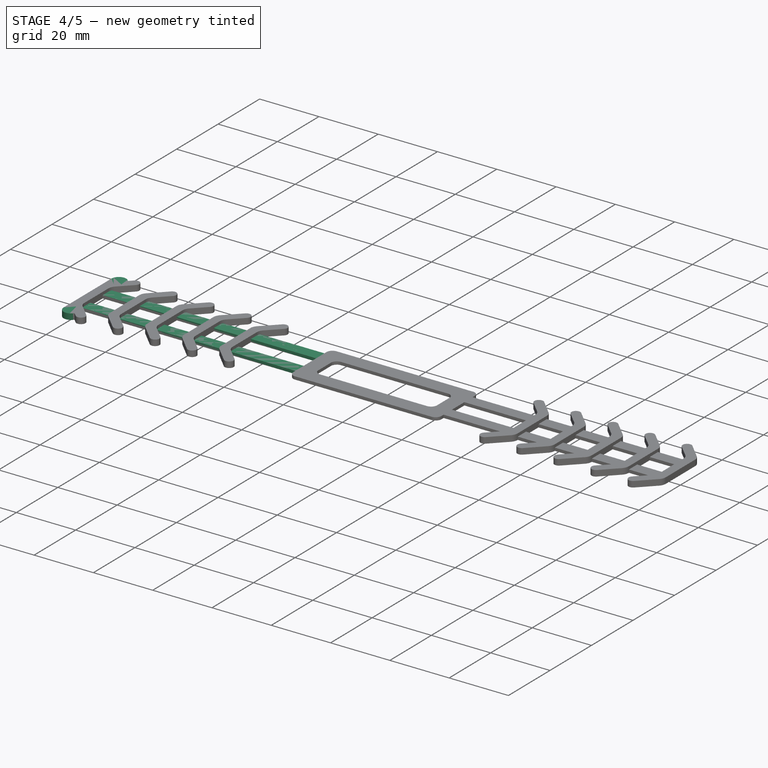
[diagram: stage 4 of 5 — iso view after this stage's code; geometry added in this stage tinted green]
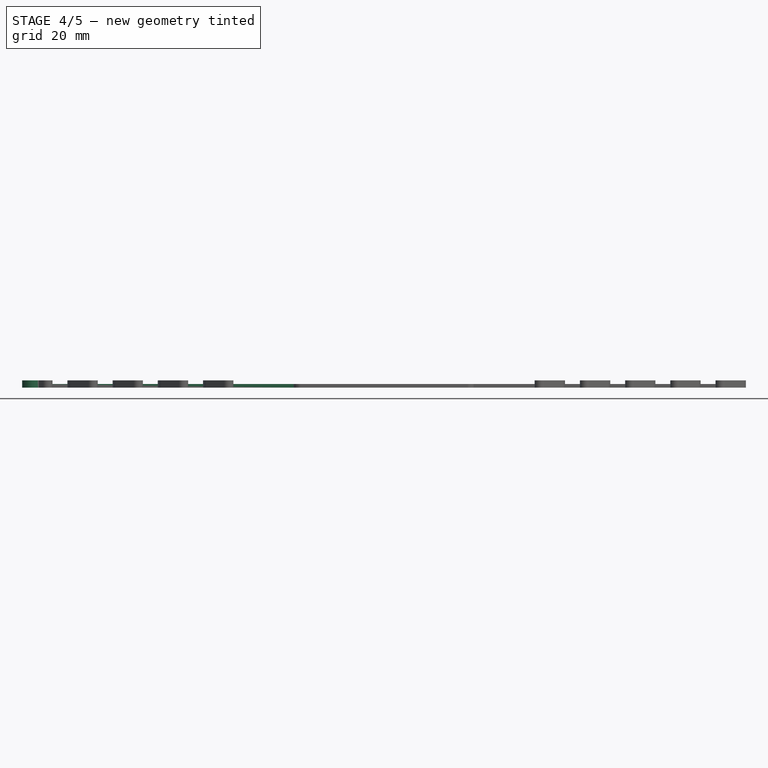
[diagram: stage 4 of 5 — front view after this stage's code; geometry added in this stage tinted green]
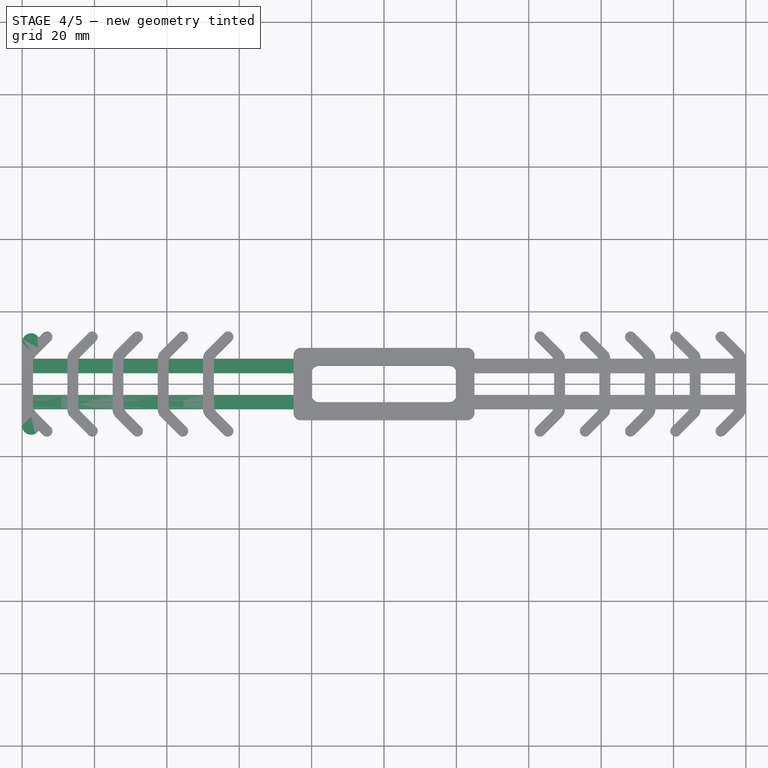
[diagram: stage 4 of 5 — top view after this stage's code; geometry added in this stage tinted green]
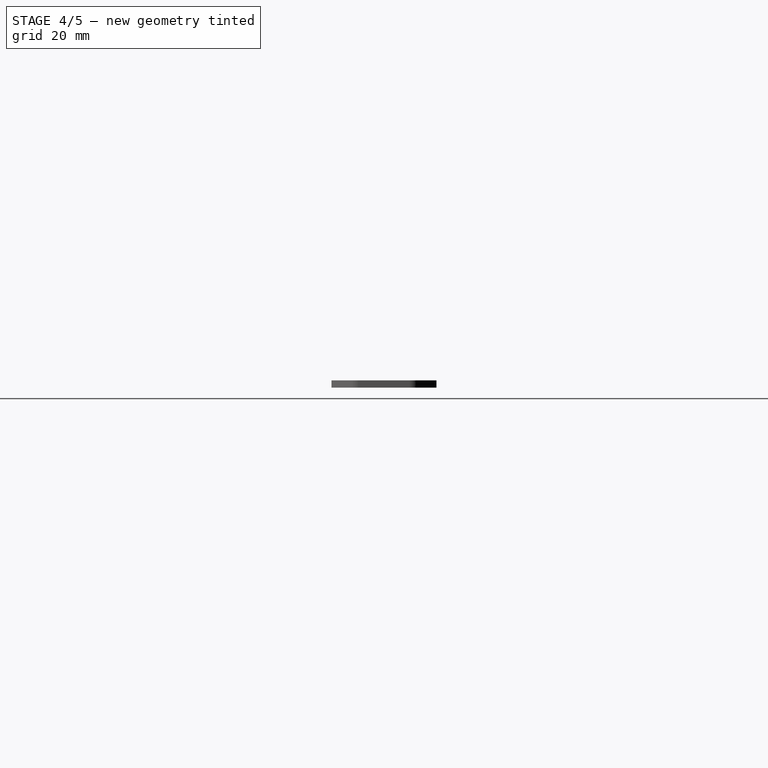
[diagram: stage 4 of 5 — right view after this stage's code; geometry added in this stage tinted green]
FEATURE [Sketcher::SketchObject] Sketch
  FullyConstrained = true
  MapMode = 5
  Support = -> [XY_Plane001]
  sketch-geometry (36):
    g0: LineSegment StartX=-18 StartY=5 StartZ=0 EndX=18 EndY=5 EndZ=0
    g1: LineSegment StartX=20 StartY=3 StartZ=0 EndX=20 EndY=-3 EndZ=0
    g2: LineSegment StartX=18 StartY=-5 StartZ=0 EndX=-18 EndY=-5 EndZ=0
    g3: LineSegment StartX=-20 StartY=-3 StartZ=0 EndX=-20 EndY=3 EndZ=0
    g4: LineSegment StartX=-23 StartY=10 StartZ=0 EndX=23 EndY=10 EndZ=0
    g5: LineSegment StartX=25 StartY=8 StartZ=0 EndX=25 EndY=7 EndZ=0
    g6: LineSegment StartX=23 StartY=-10 StartZ=0 EndX=-23 EndY=-10 EndZ=0
    g7: LineSegment StartX=-25 StartY=-8 StartZ=0 EndX=-25 EndY=-7 EndZ=0
    g8: ArcOfCircle CenterX=-23 CenterY=8 CenterZ=0 NormalX=0 NormalY=0 NormalZ=1 AngleXU=0 Radius=2 StartAngle=1.5708 EndAngle=3.14159
    g9: ArcOfCircle CenterX=-18 CenterY=3 CenterZ=0 NormalX=0 NormalY=0 NormalZ=1 AngleXU=0 Radius=2 StartAngle=1.5708 EndAngle=3.14159
    g10: ArcOfCircle CenterX=18 CenterY=3 CenterZ=0 NormalX=0 NormalY=0 NormalZ=1 AngleXU=0 Radius=2 StartAngle=0 EndAngle=1.5708
    g11: ArcOfCircle CenterX=23 CenterY=8 CenterZ=0 NormalX=0 NormalY=0 NormalZ=1 AngleXU=0 Radius=2 StartAngle=1e-16 EndAngle=1.5708
    g12: ArcOfCircle CenterX=23 CenterY=-8 CenterZ=0 NormalX=0 NormalY=0 NormalZ=1 AngleXU=0 Radius=2 StartAngle=4.71239 EndAngle=6.28319
    g13: ArcOfCircle CenterX=18 CenterY=-3 CenterZ=0 NormalX=0 NormalY=0 NormalZ=1 AngleXU=0 Radius=2 StartAngle=4.71239 EndAngle=6.28319
    g14: ArcOfCircle CenterX=-18 CenterY=-3 CenterZ=0 NormalX=0 NormalY=0 NormalZ=1 AngleXU=0 Radius=2 StartAngle=3.14159 EndAngle=4.71239
    g15: ArcOfCircle CenterX=-23 CenterY=-8 CenterZ=0 NormalX=0 NormalY=0 NormalZ=1 AngleXU=0 Radius=2 StartAngle=3.14159 EndAngle=4.71239
    g16: LineSegment StartX=-20 StartY=3 StartZ=0 EndX=-25 EndY=3 EndZ=0
    g17: LineSegment StartX=18 StartY=5 StartZ=0 EndX=18 EndY=10 EndZ=0
    g18: LineSegment StartX=20 StartY=-3 StartZ=0 EndX=25 EndY=-3 EndZ=0
    g19: LineSegment StartX=-18 StartY=-5 StartZ=0 EndX=-18 EndY=-10 EndZ=0
    g20: LineSegment StartX=-25 StartY=7 StartZ=0 EndX=-100 EndY=7 EndZ=0
    g21: LineSegment StartX=-100 StartY=7 StartZ=0 EndX=-100 EndY=3 EndZ=0
    g22: LineSegment StartX=-100 StartY=3 StartZ=0 EndX=-25 EndY=3 EndZ=0
    g23: LineSegment StartX=-25 StartY=-3 StartZ=0 EndX=-100 EndY=-3 EndZ=0
    g24: LineSegment StartX=-100 StartY=-3 StartZ=0 EndX=-100 EndY=-7 EndZ=0
    g25: LineSegment StartX=-100 StartY=-7 StartZ=0 EndX=-25 EndY=-7 EndZ=0
    g26: LineSegment StartX=25 StartY=7 StartZ=0 EndX=100 EndY=7 EndZ=0
    g27: LineSegment StartX=100 StartY=7 StartZ=0 EndX=100 EndY=3 EndZ=0
    g28: LineSegment StartX=100 StartY=3 StartZ=0 EndX=25 EndY=3 EndZ=0
    g29: LineSegment StartX=25 StartY=-3 StartZ=0 EndX=100 EndY=-3 EndZ=0
    g30: LineSegment StartX=100 StartY=-3 StartZ=0 EndX=100 EndY=-7 EndZ=0
    g31: LineSegment StartX=100 StartY=-7 StartZ=0 EndX=25 EndY=-7 EndZ=0
    g32: LineSegment StartX=-25 StartY=7 StartZ=0 EndX=-25 EndY=8 EndZ=0
    g33: LineSegment StartX=-25 StartY=-3 StartZ=0 EndX=-25 EndY=3 EndZ=0
    g34: LineSegment StartX=25 StartY=3 StartZ=0 EndX=25 EndY=-3 EndZ=0
    g35: LineSegment StartX=25 StartY=-7 StartZ=0 EndX=25 EndY=-8 EndZ=0
  constraints (93):
    c: Horizontal(g0)
    c: Horizontal(g2)
    c: Vertical(g1)
    c: Vertical(g3)
    c: Horizontal(g4)
    c: Horizontal(g6)
    c: Vertical(g5)
    c: Vertical(g7)
    c: Tangent(g4,g8) = 1.5708
    c: Tangent(g0,g9) = 1.5708
    c: Tangent(g3,g9) = 1.5708
    c: Tangent(g0,g10) = 1.5708
    c: Tangent(g1,g10) = 1.5708
    c: Tangent(g4,g11) = 1.5708
    c: Tangent(g5,g11) = 1.5708
    c: Tangent(g6,g12) = 1.5708
    c: Tangent(g1,g13) = 1.5708
    c: Tangent(g2,g13) = 1.5708
    c: Tangent(g2,g14) = 1.5708
    c: Tangent(g3,g14) = 1.5708
    c: Tangent(g6,g15) = 1.5708
    c: Tangent(g7,g15) = 1.5708
    c: Equal(g8,g9)
    c: Equal(g9,g10)
    c: Equal(g10,g11)
    c: Equal(g11,g12)
    c: Equal(g12,g13)
    c: Equal(g13,g14)
    c: Equal(g14,g15)
    c: Radius(g8) = 2
    c: Coincident(g16,g3)
    c: Horizontal(g16)
    c: Coincident(g17,g0)
    c: PointOnObject(g17,g4)
    c: Vertical(g17)
    c: Coincident(g18,g1)
    c: PointOnObject(g18,g5)
    c: Horizontal(g18)
    c: Coincident(g19,g2)
    c: PointOnObject(g19,g6)
    c: Vertical(g19)
    c: Equal(g16,g17)
    c: Equal(g17,g18)
    c: Equal(g18,g19)
    c: DistanceY(g19,g19) = 5
    c: DistanceX(g32,g5) = 50
    c: DistanceY(g6,g4) = 20
    c: Horizontal(g20)
    c: Coincident(g20,g21)
    c: Coincident(g21,g22)
    c: PointOnObject(g22,g7)
    c: Horizontal(g22)
    c: DistanceY(g21,g21) = 4
    c: Symmetric(g20,g21,g0)
    c: Horizontal(g23)
    c: Coincident(g23,g24)
    c: Coincident(g24,g25)
    c: Horizontal(g25)
    c: Equal(g21,g24)
    c: Symmetric(g23,g24,g2)
    c: Equal(g23,g22)
    c: Horizontal(g26)
    c: Coincident(g26,g27)
    c: Coincident(g27,g28)
    c: Horizontal(g28)
    c: PointOnObject(g29,g5)
    c: Horizontal(g29)
    c: Coincident(g29,g30)
    c: Coincident(g30,g31)
    c: PointOnObject(g31,g5)
    c: Horizontal(g31)
    c: Equal(g25,g31)
    c: Equal(g29,g28)
    c: Equal(g24,g30)
    c: Equal(g30,g27)
    c: Symmetric(g26,g27,g0)
    c: Symmetric(g30,g29,g2)
    c: Symmetric(g14,g10,g-1)
    c: Coincident(g33,g16)
    c: Coincident(g32,g20)
    c: Tangent(g7,g32)
    c: Coincident(g7,g25)
    c: Coincident(g33,g23)
    c: Tangent(g7,g33)
    c: Coincident(g5,g26)
    c: Coincident(g34,g28)
    c: Tangent(g5,g34)
    c: PointOnObject(g34,g18)
    c: PointOnObject(g35,g31)
    c: Tangent(g34,g35)
    c: Tangent(g8,g32) = 1.5708
    c: Tangent(g12,g35) = 1.5708
    c: DistanceX(g20,g20) = 75
FEATURE [PartDesign::Pad] Pad
  AllowMultiFace = false
  Direction = (1,1,1)
  Length = 1
  Length2 = 100
  Profile = -> Sketch
  Type = 0
FEATURE [Sketcher::SketchObject] Sketch001
  ExternalGeometry = -> [Sketch]
  FullyConstrained = true
  MapMode = 5
  Support = -> [XY_Plane001]
  sketch-geometry (5):
    g0: LineSegment StartX=-100 StartY=11.5 StartZ=0 EndX=-100 EndY=-11.5 EndZ=0
    g1: LineSegment StartX=-100 StartY=-2e-16 StartZ=0 EndX=-97.5 EndY=-6.1e-15 EndZ=0
    g2: LineSegment StartX=-97.5 StartY=9 StartZ=0 EndX=-97.5 EndY=-9 EndZ=0
    g3: ArcOfCircle CenterX=-97.5 CenterY=-11.5 CenterZ=0 NormalX=0 NormalY=0 NormalZ=1 AngleXU=0 Radius=2.5 StartAngle=3.14159 EndAngle=7.85398
    g4: ArcOfCircle CenterX=-97.5 CenterY=11.5 CenterZ=0 NormalX=0 NormalY=0 NormalZ=1 AngleXU=0 Radius=2.5 StartAngle=4.71239 EndAngle=9.42478
  constraints (13):
    c: PointOnObject(g-3,g0)
    c: PointOnObject(g1,g0)
    c: Symmetric(g-3,g-4,g1)
    c: PointOnObject(g1,g2)
    c: Symmetric(g0,g0,g1)
    c: Symmetric(g2,g2,g1)
    c: Coincident(g3,g2)
    c: Tangent(g0,g3) = -1.5708
    c: PointOnObject(g3,g2)
    c: DistanceX(g0,g2) = 2.5  'Width'
    c: DistanceY(g2,g-4) = 2  'Distance'
    c: Coincident(g4,g2)
    c: Tangent(g0,g4) = -1.5708
FEATURE [PartDesign::Pad] Pad001
  AllowMultiFace = false
  BaseFeature = -> Pad
  Direction = (1,1,1)
  Length = 2
  Length2 = 100
  Profile = -> Sketch001
  Type = 0
FEATURE [PartDesign::LinearPattern] LinearPattern003
  BaseFeature = -> Pad005
  Direction = -> Sketch005 [H_Axis]
  Length = 50
  Occurrences = 5
  Originals = -> [Pad005]
  Refine = true
  Reversed = true
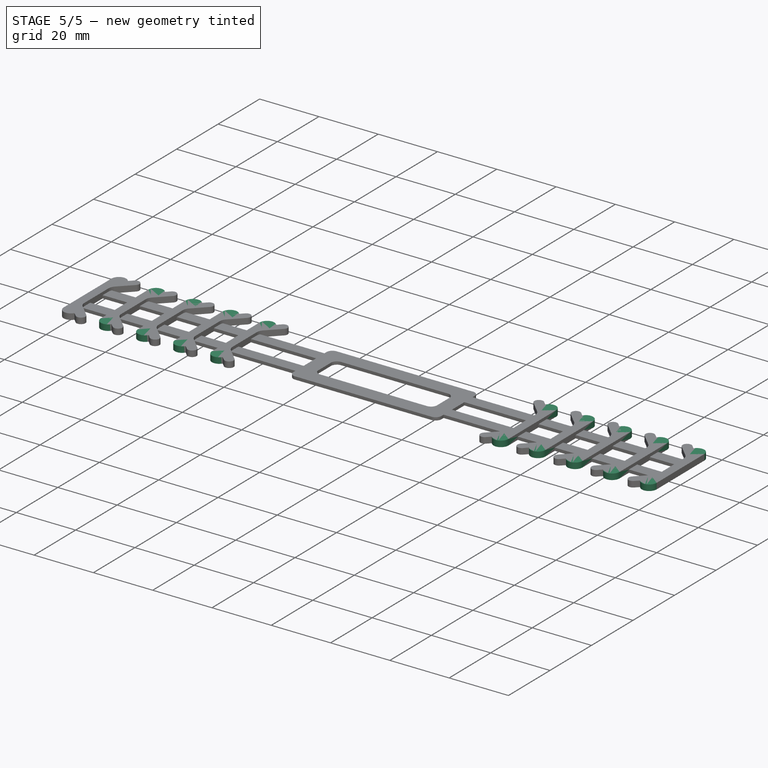
[diagram: stage 5 of 5 — iso view after this stage's code; geometry added in this stage tinted green]
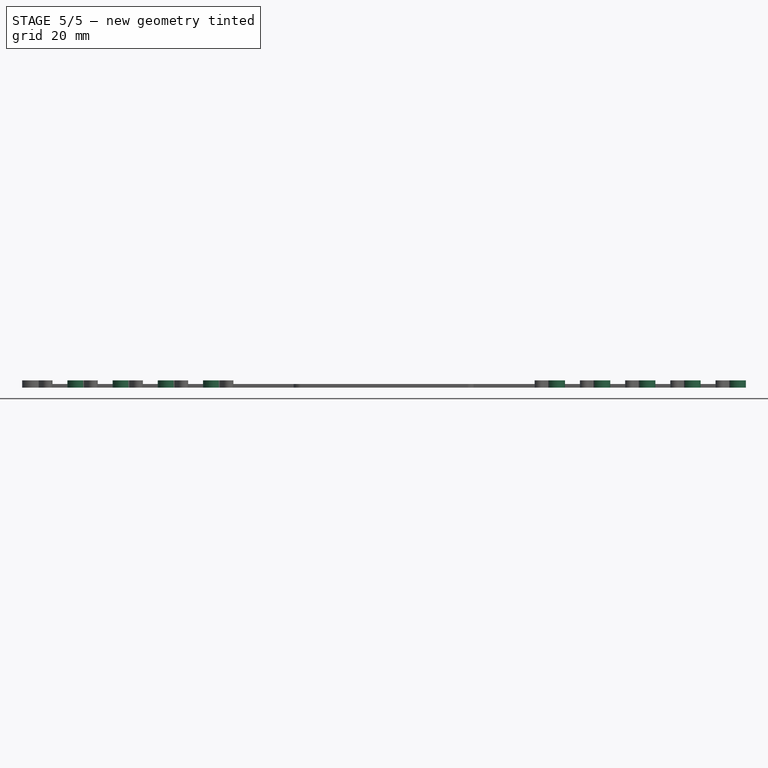
[diagram: stage 5 of 5 — front view after this stage's code; geometry added in this stage tinted green]
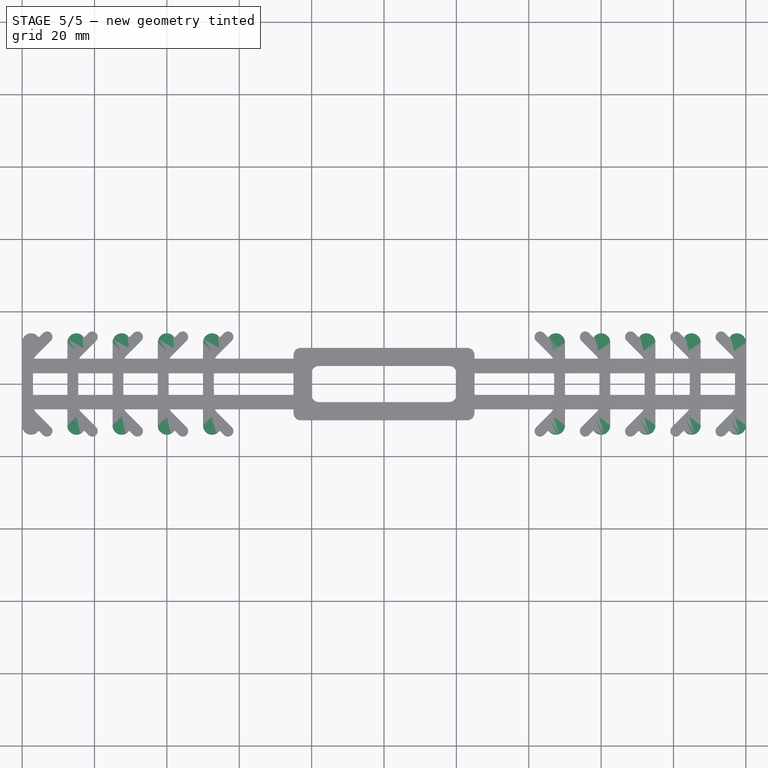
[diagram: stage 5 of 5 — top view after this stage's code; geometry added in this stage tinted green]
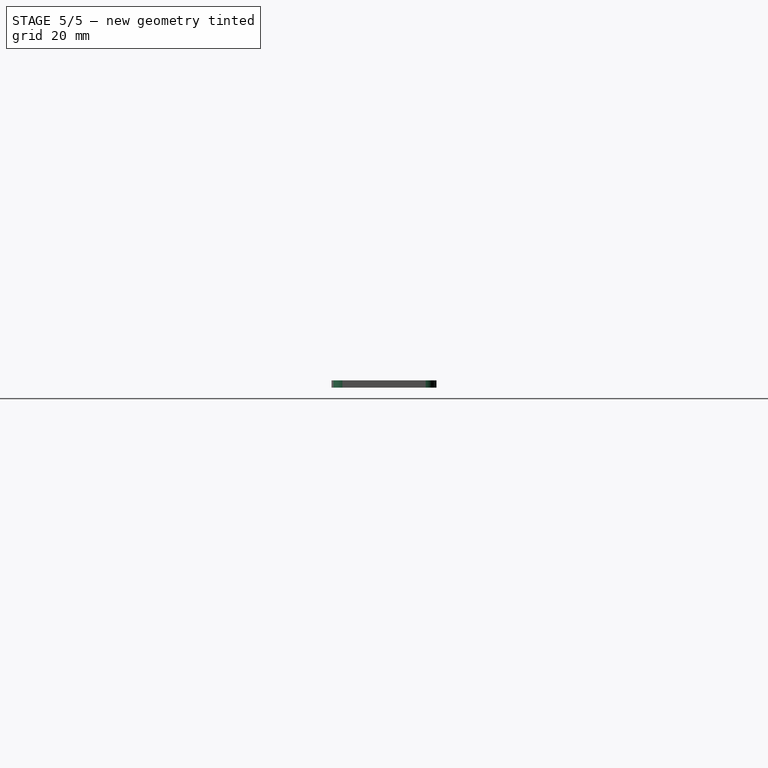
[diagram: stage 5 of 5 — right view after this stage's code; geometry added in this stage tinted green]
FEATURE [PartDesign::LinearPattern] LinearPattern
  BaseFeature = -> Pad001
  Direction = -> Sketch001 [H_Axis]
  Length = 50
  Occurrences = 5
  Originals = -> [Pad001]
  Refine = true
FEATURE [Sketcher::SketchObject] Sketch002
  ExternalGeometry = -> [Sketch]
  FullyConstrained = true
  MapMode = 5
  Support = -> [XY_Plane001]
  expr: Constraints[10] = Sketch001.Constraints.Distance
  expr: Constraints[5] = Sketch001.Constraints.Width
  sketch-geometry (5):
    g0: LineSegment StartX=100 StartY=11.5 StartZ=0 EndX=100 EndY=-11.5 EndZ=0
    g1: LineSegment StartX=97.5 StartY=-9 StartZ=0 EndX=97.5 EndY=9 EndZ=0
    g2: LineSegment StartX=97.5 StartY=-2e-16 StartZ=0 EndX=100 EndY=-2e-16 EndZ=0
    g3: ArcOfCircle CenterX=97.5 CenterY=11.5 CenterZ=0 NormalX=0 NormalY=0 NormalZ=1 AngleXU=0 Radius=2.5 StartAngle=1.129e-13 EndAngle=4.71239
    g4: ArcOfCircle CenterX=97.5 CenterY=-11.5 CenterZ=0 NormalX=0 NormalY=0 NormalZ=1 AngleXU=0 Radius=2.5 StartAngle=1.5708 EndAngle=6.28319
  constraints (13):
    c: PointOnObject(g2,g1)
    c: PointOnObject(g2,g0)
    c: Symmetric(g-3,g-4,g2)
    c: Symmetric(g1,g1,g2)
    c: Symmetric(g0,g0,g2)
    c: DistanceX(g1,g0) = 2.5
    c: Coincident(g3,g1)
    c: PointOnObject(g3,g1)
    c: Tangent(g0,g3) = 1.5708
    c: PointOnObject(g-3,g0)
    c: DistanceY(g-3,g1) = 2
    c: Coincident(g4,g1)
    c: Tangent(g0,g4) = 1.5708
FEATURE [PartDesign::Pad] Pad002
  AllowMultiFace = false
  BaseFeature = -> LinearPattern
  Direction = (1,1,1)
  Length = 2
  Length2 = 100
  Profile = -> Sketch002
  Type = 0
  expr: Length = Pad001.Length
FEATURE [PartDesign::LinearPattern] LinearPattern001
  BaseFeature = -> Pad002
  Direction = -> Sketch002 [H_Axis]
  Length = 50
  Occurrences = 5
  Originals = -> [Pad002]
  Refine = true
  Reversed = true
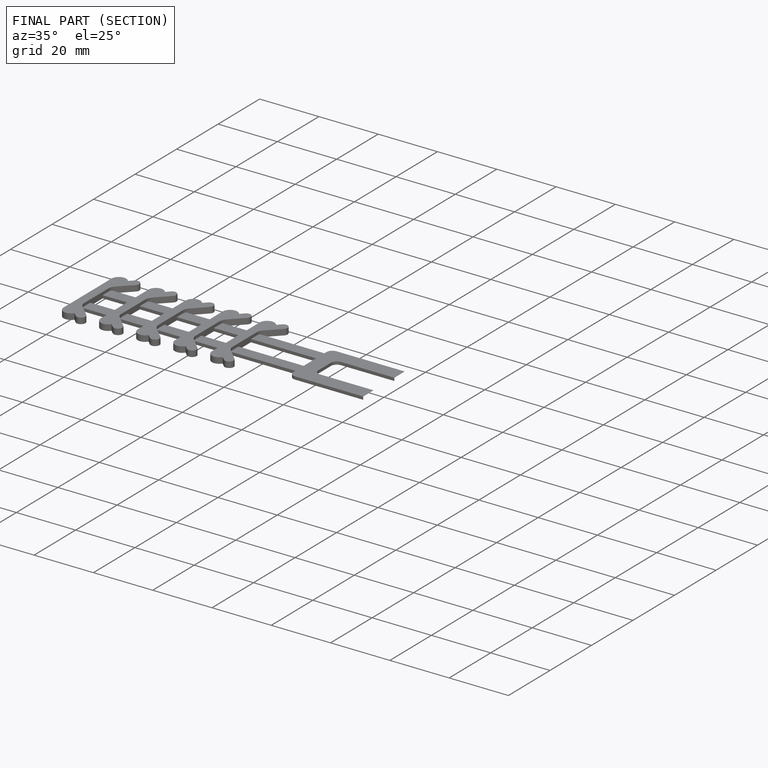
[diagram: finished part — half-section view (interior)]
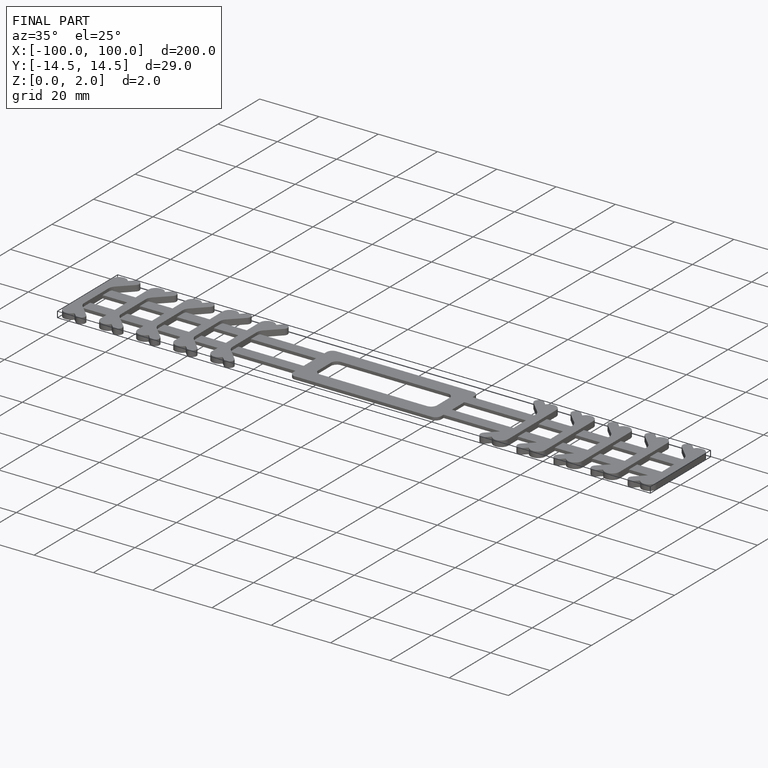
[diagram: finished part — iso view with bounding-box wireframe]
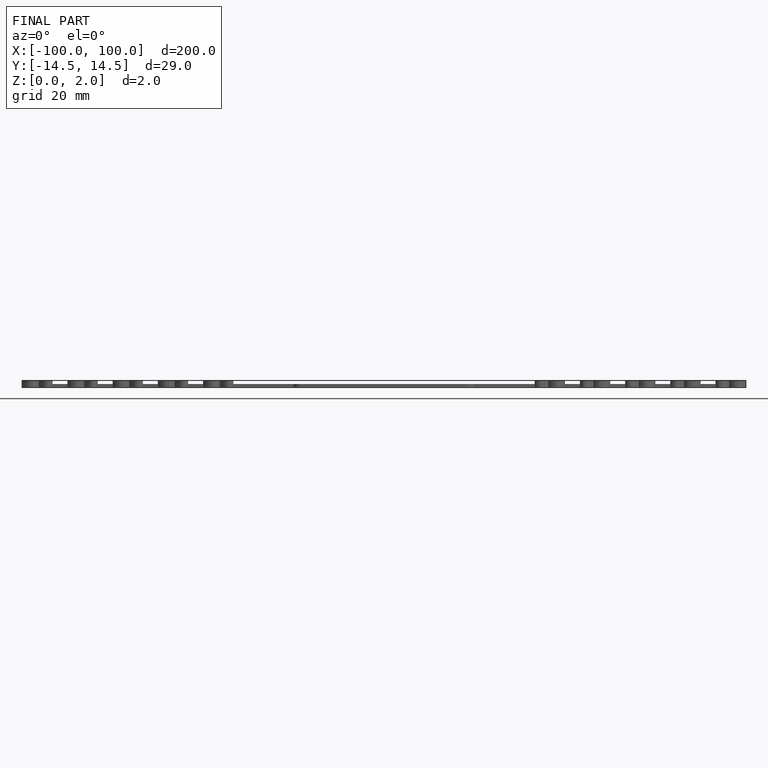
[diagram: finished part — front view with bounding-box wireframe]
